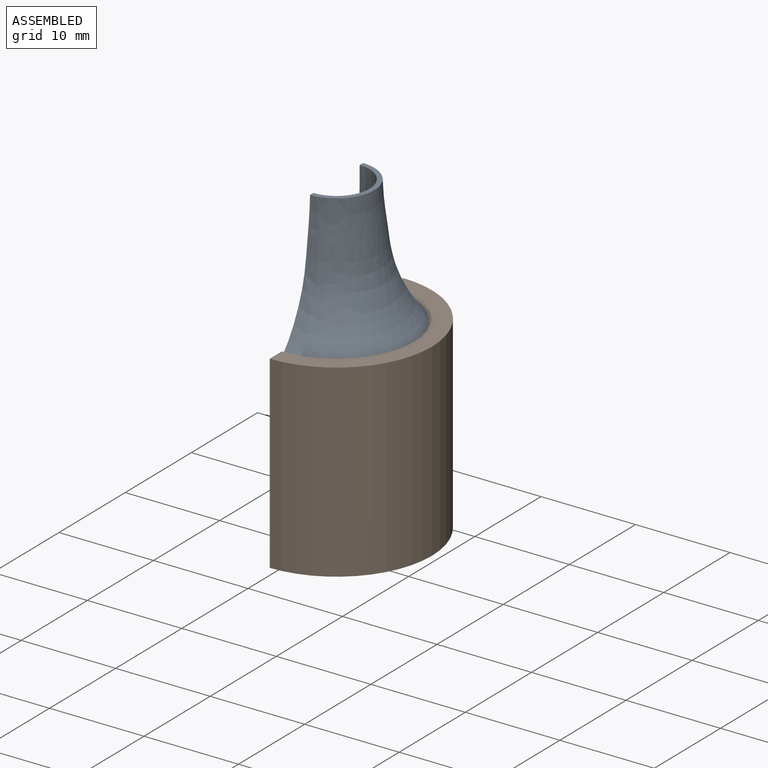
[diagram: assembled view]
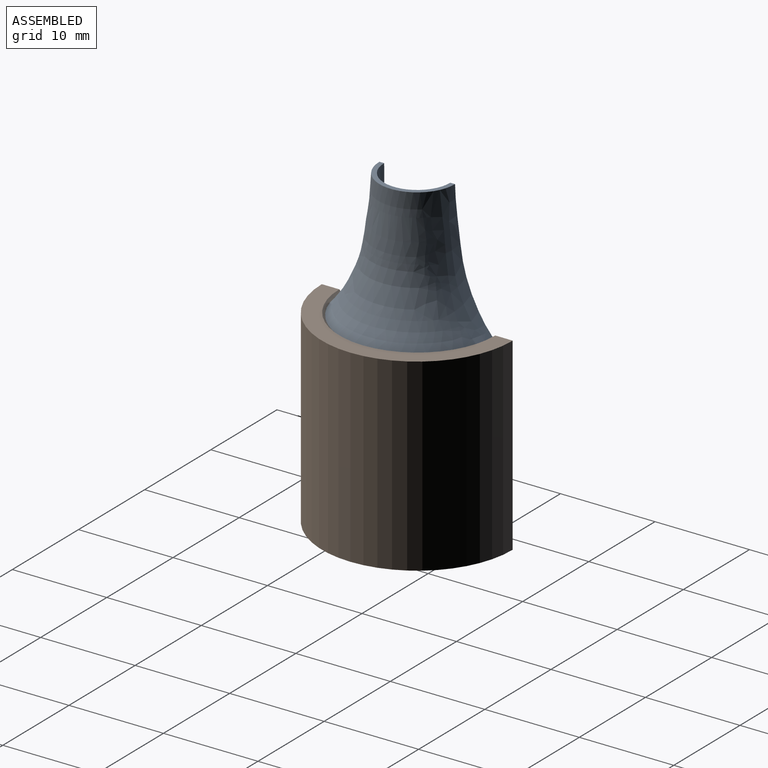
[diagram: assembled view, second angle]
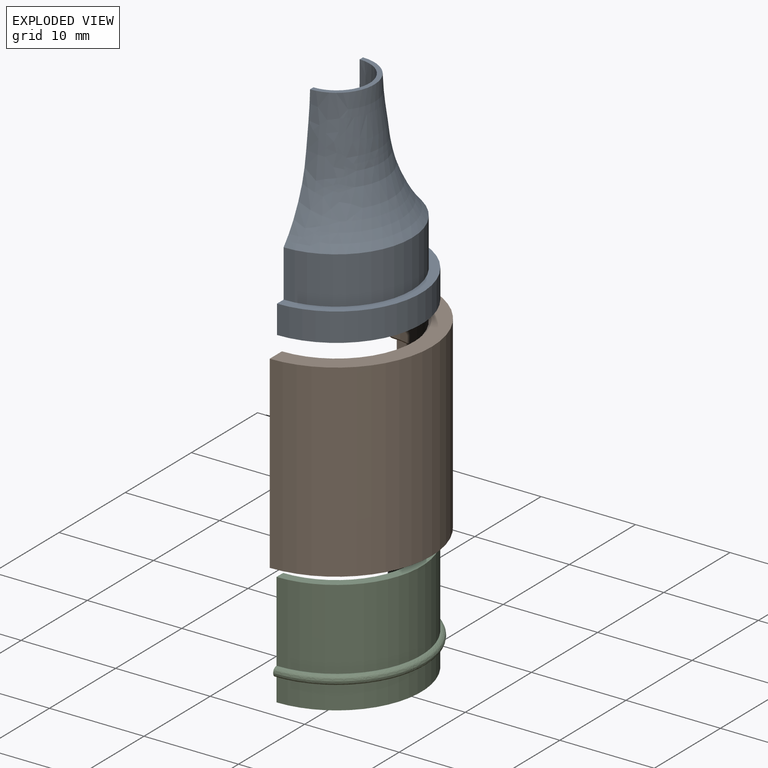
[diagram: exploded view]
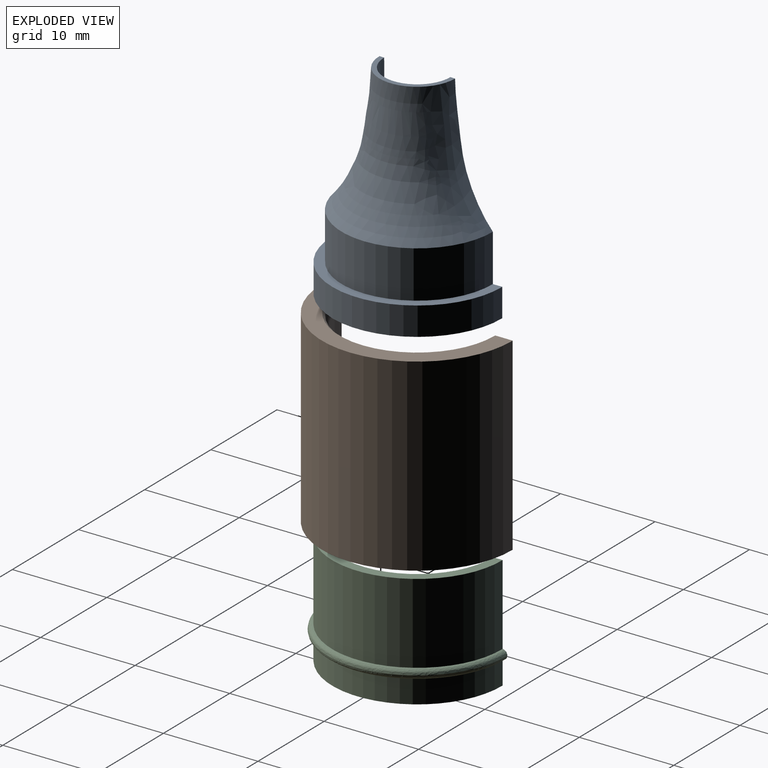
[diagram: exploded view, second angle]
ASSEMBLY  parts=3 mates=2
PART A: 12 faces, bbox 16x18x21.6 mm
  f0: plane 21.59x5.55mm, normal (-1,0,0), area 33.5mm2, adj f1,f3,f4,f5,f6,f7,f8,f9
  f1: plane 11.97x5.99mm, normal (0,0,-1), area 1.6mm2, adj f0,f2,f7,f10
  f2: plane 21.59x5.55mm, normal (-1,0,0), area 33.5mm2, adj f1,f3,f4,f5,f6,f7,f8,f9
  f3: cylinder r=9mm len=18mm, axis (0,0,-1), area 84.8mm2, adj f0,f2,f4,f5
  f4: plane 18x9mm, normal (0,0,1), area 29.2mm2, adj f0,f2,f3,f11
  f5: plane 18x9mm, normal (0,0,-1), area 26.7mm2, adj f0,f2,f3,f6
  f6: cylinder r=8mm len=16mm, axis (0,0,1), area 125.7mm2, adj f0,f2,f5,f8
  f7: bspline ~13.6x12mm, area 178.8mm2, adj f0,f1,f2,f9
  f8: bspline ~16x16mm, area 238.2mm2, adj f0,f2,f6,f9
  f9: plane 8x4mm, normal (0,0,-1), area 5.9mm2, adj f0,f2,f7,f8
  f10: cylinder r=5.9mm len=11.8mm, axis (0,0,1), area 111.2mm2, adj f0,f1,f2,f11
  f11: cone r=5.9mm half-angle=45deg, axis (0,0,1), area 61.3mm2, adj f0,f2,f4,f10
PART B: 13 faces, bbox 10.4x20.8x20 mm
  f0: plane 20x2.1mm, normal (-1,0,0), area 25.1mm2, adj f1,f3,f4,f5,f6,f7,f8,f9
  f1: cylinder r=9.1mm len=18.2mm, axis (0,0,-1), area 71.5mm2, adj f0,f2,f3,f12
  f2: plane 20x2.1mm, normal (-1,0,0), area 25.1mm2, adj f1,f3,f4,f5,f6,f7,f8,f9
  f3: plane 20.2x10.1mm, normal (0,0,-1), area 30.2mm2, adj f0,f1,f2,f4
  f4: cylinder r=10.1mm len=20.2mm, axis (0,0,-1), area 634.6mm2, adj f0,f2,f3,f5
  f5: plane 20.2x10.1mm, normal (0,0,1), area 53.3mm2, adj f0,f2,f4,f9
  f6: cylinder r=9.1mm len=18.2mm, axis (0,0,-1), area 321.6mm2, adj f0,f2,f11,f12
  f7: plane 17.7x8.85mm, normal (0,0,-1), area 16.1mm2, adj f0,f2,f10,f11
  f8: cylinder r=8mm len=16mm, axis (0,0,1), area 113.1mm2, adj f0,f2,f9,f10
  f9: cone r=8mm half-angle=45deg, axis (0,0,1), area 9mm2, adj f0,f2,f5,f8
  f10: cone r=8.25mm half-angle=45deg, axis (0,0,-1), area 9mm2, adj f0,f2,f7,f8
  f11: cone r=9.1mm half-angle=45deg, axis (0,0,-1), area 10mm2, adj f0,f2,f6,f7
  f12: torus R=9.1mm, axis (0,0,1), area 46.5mm2, adj f0,f1,f2,f6
PART C: 9 faces, bbox 10.1x20.1x12 mm
  f0: cylinder r=9mm len=18mm, axis (0,0,1), area 70.9mm2, adj f1,f2,f5,f8
  f1: plane 12x1mm, normal (-1,0,0), area 12mm2, adj f0,f3,f4,f5,f6,f7
  f2: plane 12x1.5mm, normal (-1,0,0), area 12.4mm2, adj f0,f3,f4,f5,f6,f8
  f3: cylinder r=9mm len=18mm, axis (0,0,1), area 241.1mm2, adj f1,f2,f4,f8
  f4: plane 18x9.05mm, normal (0,0,-1), area 26.8mm2, adj f1,f2,f3,f6
  f5: plane 18x9.05mm, normal (0,0,1), area 26.8mm2, adj f0,f1,f2,f6
  f6: cylinder r=8mm len=16mm, axis (0,0,1), area 302.7mm2, adj f1,f2,f4,f5
  f7: plane 1x0.5mm, normal (-1,-0.01,0), area 0.4mm2, adj f1,f8
  f8: bspline ~20.06x10.06mm, area 46.1mm2, adj f0,f2,f3,f7
PLACE A rot(axis=(1,0,0),180deg) t=(36.22,-19.79,11)mm
PLACE B t=(36.22,-19.79,-3.75)mm
PLACE C rot(axis=(1,0,0),180deg) t=(36.18,-19.54,-3.75)mm
MATE fastened C.f0 <-> B.f4  axis (0,0,-1) through (36.22,-19.79,-3.75)mm
MATE fastened A.f3 <-> B.f1  axis (0,0,1) through (36.22,-19.79,11)mm
